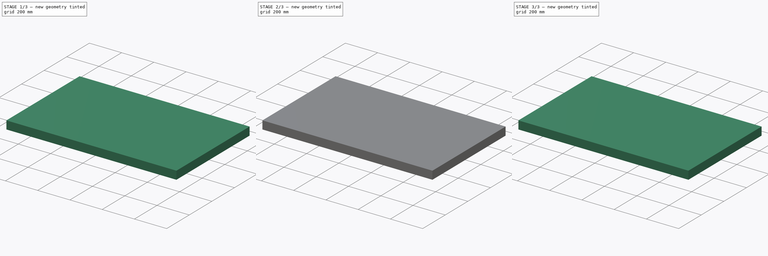
[diagram: build sequence overview — one tinted view per stage of 3, left to right]
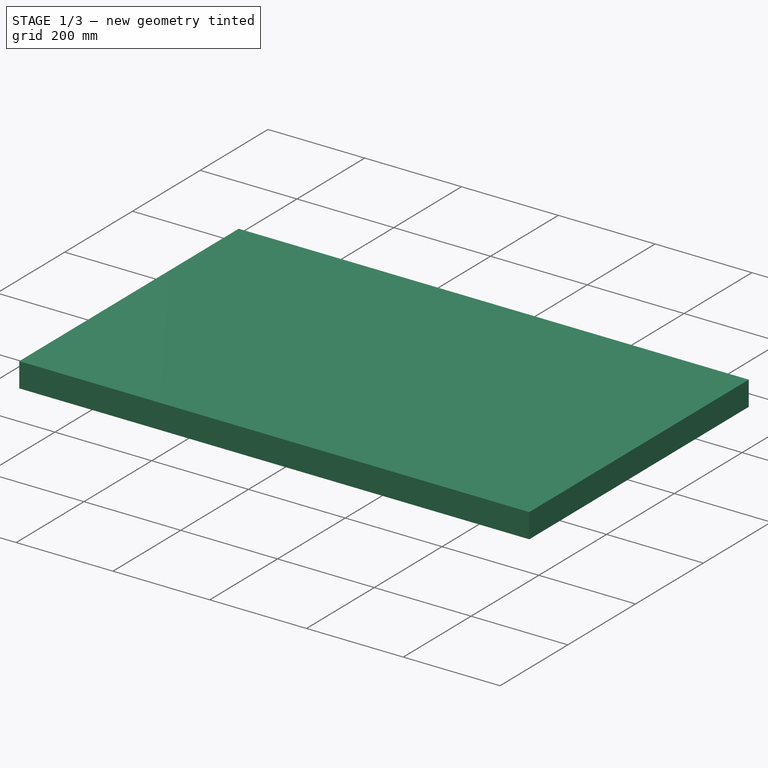
[diagram: stage 1 of 3 — iso view after this stage's code; geometry added in this stage tinted green]
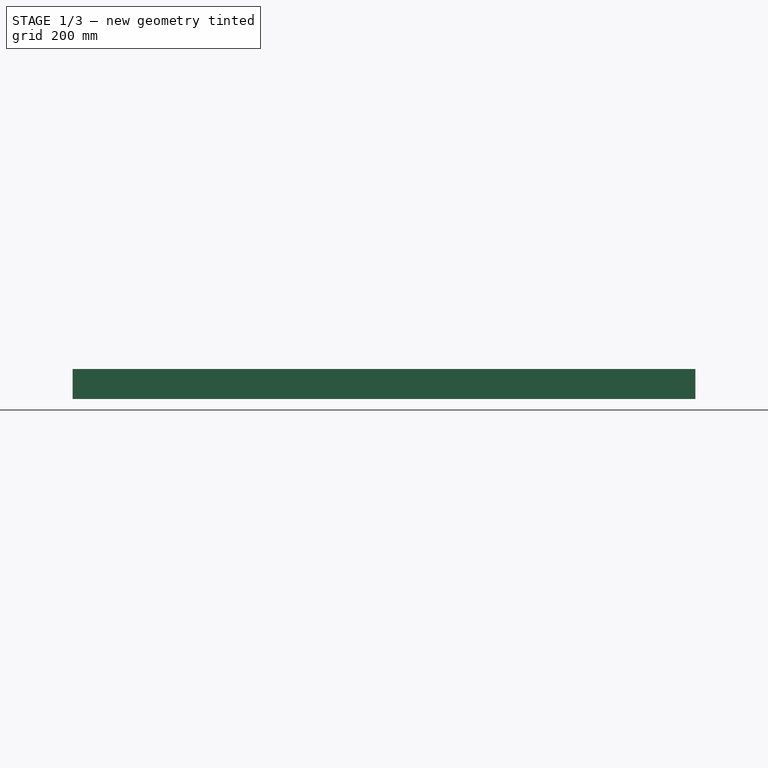
[diagram: stage 1 of 3 — front view after this stage's code; geometry added in this stage tinted green]
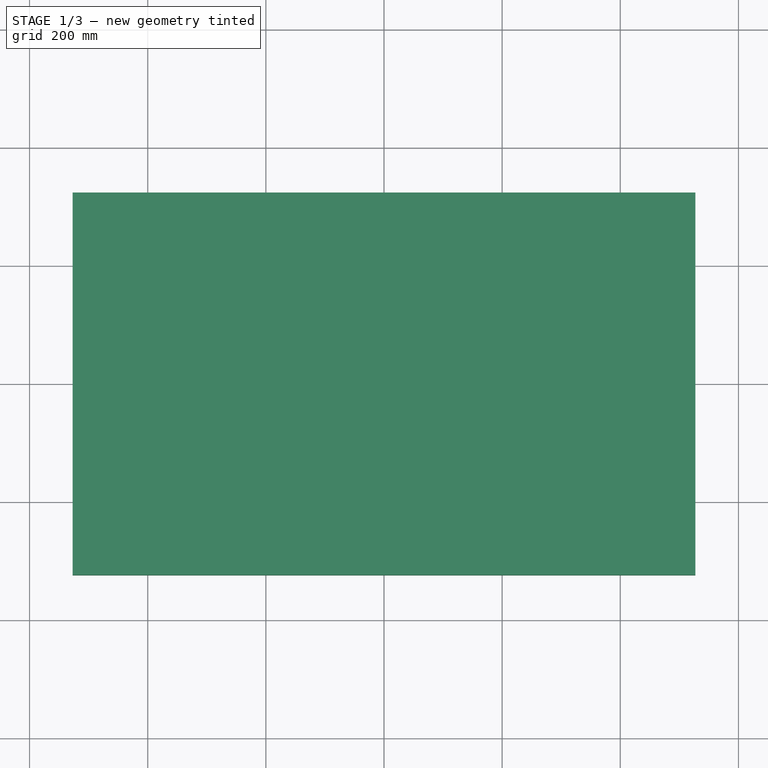
[diagram: stage 1 of 3 — top view after this stage's code; geometry added in this stage tinted green]
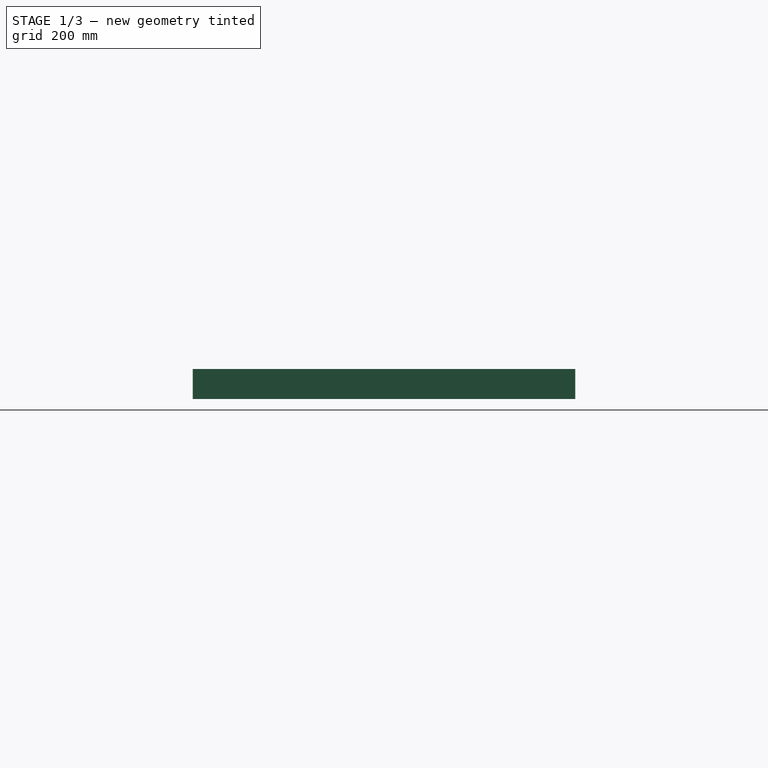
[diagram: stage 1 of 3 — right view after this stage's code; geometry added in this stage tinted green]
FCSTD DOCUMENT  (FreeCAD 1.1R40971 (Git))
Label: lid
License: All rights reserved
LicenseURL: http://en.wikipedia.org/wiki/All_rights_reserved
objects: Sketcher::SketchObject×4, App::Point×3, PartDesign::Pad×3, PartDesign::Body×2, PartDesign::Thickness×1, PartDesign::Pocket×1, App::Part×1
note: 25 computed .brp shape members not serialized (recipe doc carries the construction recipe); baked Part::Feature solids carry a one-line shape summary decoded from their .brp

FEATURE [App::Point] Origin001
  Role = Origin
FEATURE [Sketcher::SketchObject] Sketch
  ArcFitTolerance = 1e-06
  AttachmentSupport = -> [XY_Plane]
  ExternalTypes = [0]
  FullyConstrained = true
  MakeInternals = false
  MapMode = 5
  sketch-geometry (8):
    g0: LineSegment StartX=-527.05 StartY=323.85 StartZ=0 EndX=-527.05 EndY=-323.85 EndZ=0
    g1: LineSegment StartX=-527.05 StartY=-323.85 StartZ=0 EndX=527.05 EndY=-323.85 EndZ=0
    g2: LineSegment StartX=527.05 StartY=-323.85 StartZ=0 EndX=527.05 EndY=323.85 EndZ=0
    g3: LineSegment StartX=527.05 StartY=323.85 StartZ=0 EndX=-527.05 EndY=323.85 EndZ=0
    g4: LineSegment [constr] StartX=-412.75 StartY=304.8 StartZ=0 EndX=-412.75 EndY=-304.8 EndZ=0
    g5: LineSegment [constr] StartX=-412.75 StartY=-304.8 StartZ=0 EndX=501.65 EndY=-304.8 EndZ=0
    g6: LineSegment [constr] StartX=501.65 StartY=-304.8 StartZ=0 EndX=501.65 EndY=304.8 EndZ=0
    g7: LineSegment [constr] StartX=501.65 StartY=304.8 StartZ=0 EndX=-412.75 EndY=304.8 EndZ=0
  constraints (22):
    c: Coincident(g0,g1)
    c: Coincident(g1,g2)
    c: Coincident(g2,g3)
    c: Coincident(g3,g0)
    c: Vertical(g2)
    c: Horizontal(g1)
    c: Coincident(g4,g5)
    c: Coincident(g5,g6)
    c: Coincident(g6,g7)
    c: Coincident(g7,g4)
    c: Vertical(g6)
    c: Horizontal(g5)
    c: Horizontal(g7)
    c: DistanceY(g6,g6) = 609.6
    c: DistanceX(g7,g7) = 914.4
    c: DistanceX(g3,g3) = 1054.1
    c: DistanceY(g2,g2) = 647.7
    c: Symmetric(g0,g2,g-2)
    c: Symmetric(g0,g0,g-1)
    c: DistanceX(g6,g2) = 25.4
    c: DistanceX(g0,g4) = 114.3
    c: Symmetric(g4,g4,g-1)
FEATURE [PartDesign::Pad] Pad
  Direction = (0,0,1)
  Length = 50.8
  Length2 = 10
  Profile = -> Sketch
  ReferenceAxis = -> Sketch [N_Axis]
  Reversed = true
  Suppressed = false
  Type = 0
FEATURE [PartDesign::Body] Body001  label="window"
  AllowCompound = false
  Group = -> [Sketch001,Pad001]
  Origin = -> Origin002
  Tip = -> Pad001
FEATURE [PartDesign::Thickness] Thickness
  Base = -> Pad [Face6]
  BaseFeature = -> Pad
  Intersection = false
  Join = 0
  Mode = 0
  Reversed = true
  SupportTransform = false
  Suppressed = false
  Value = 3.302
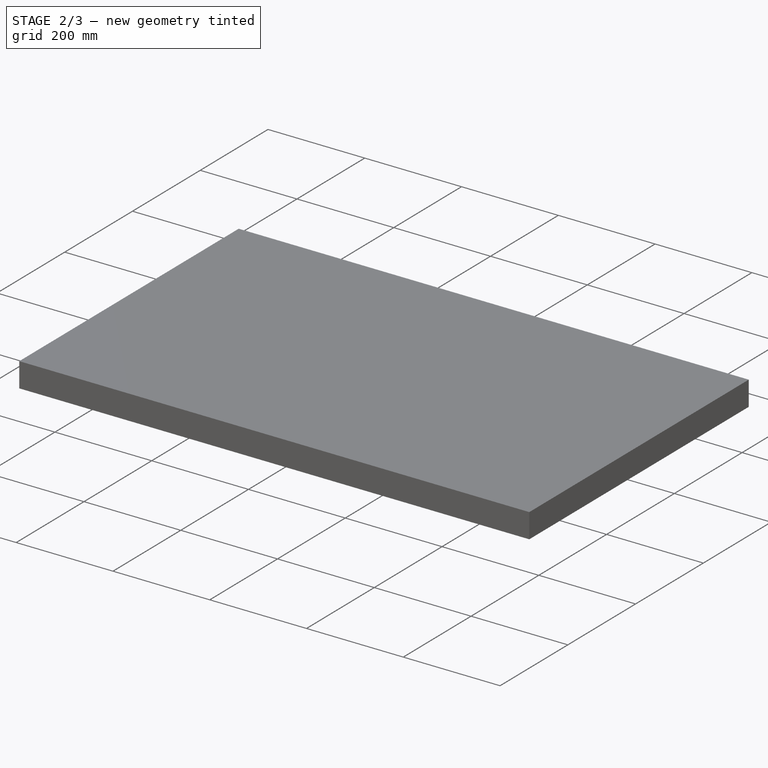
[diagram: stage 2 of 3 — iso view after this stage's code; geometry added in this stage tinted green]
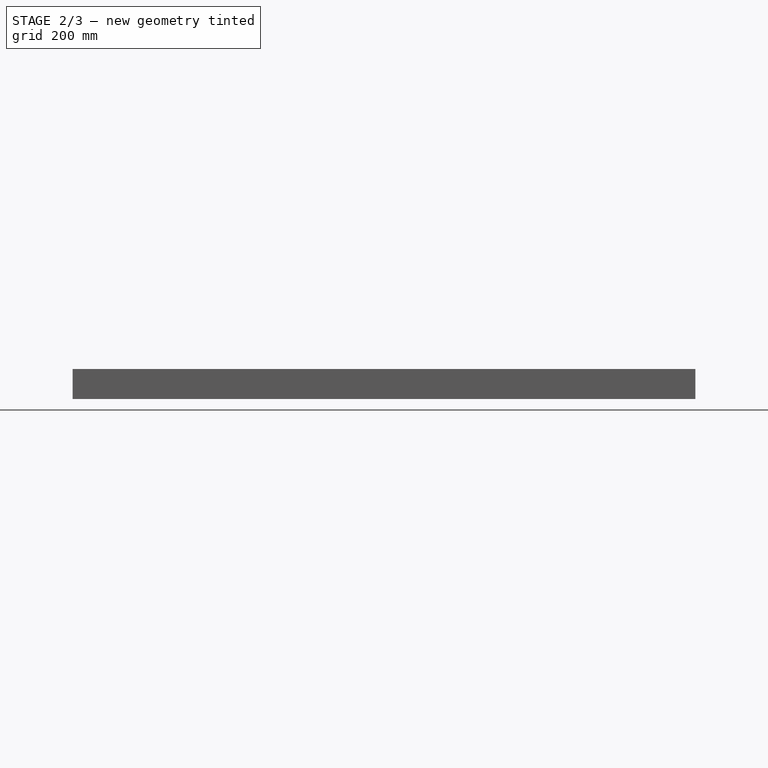
[diagram: stage 2 of 3 — front view after this stage's code; geometry added in this stage tinted green]
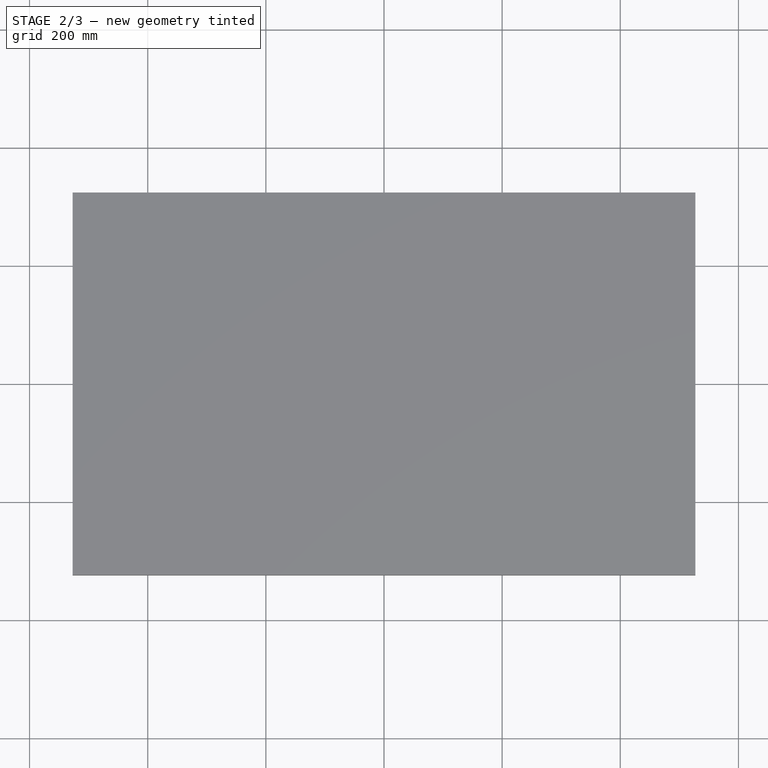
[diagram: stage 2 of 3 — top view after this stage's code; geometry added in this stage tinted green]
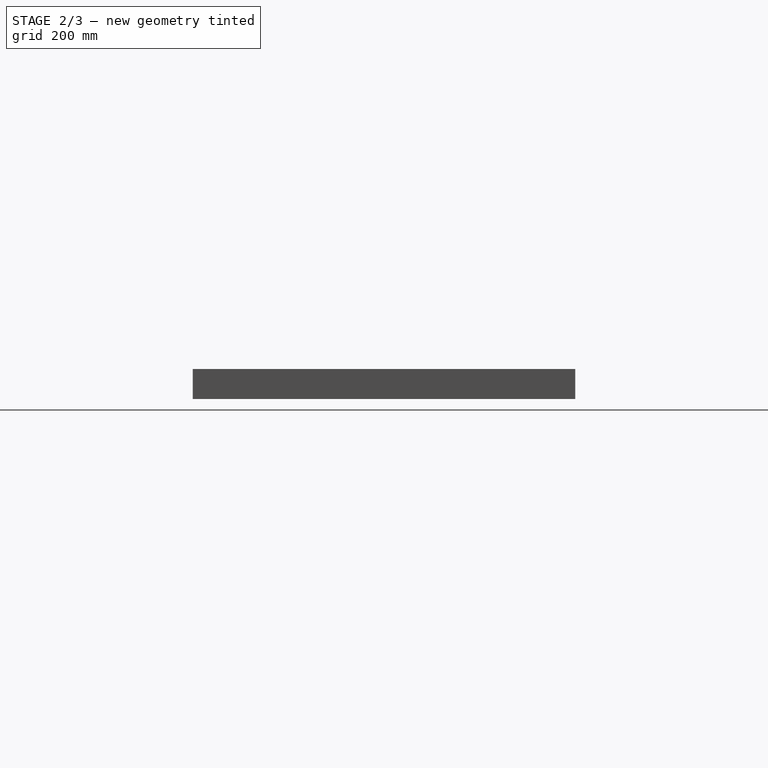
[diagram: stage 2 of 3 — right view after this stage's code; geometry added in this stage tinted green]
FEATURE [Sketcher::SketchObject] Sketch005  label="windowsk"
  ArcFitTolerance = 1e-06
  AttachmentSupport = -> [XY_Plane]
  ExternalGeometry = -> [Thickness]
  ExternalTypes = [0]
  FullyConstrained = true
  MakeInternals = false
  MapMode = 5
  sketch-geometry (4):
    g0: LineSegment StartX=-412.75 StartY=304.8 StartZ=0 EndX=-412.75 EndY=-304.8 EndZ=0
    g1: LineSegment StartX=-412.75 StartY=-304.8 StartZ=0 EndX=501.65 EndY=-304.8 EndZ=0
    g2: LineSegment StartX=501.65 StartY=-304.8 StartZ=0 EndX=501.65 EndY=304.8 EndZ=0
    g3: LineSegment StartX=501.65 StartY=304.8 StartZ=0 EndX=-412.75 EndY=304.8 EndZ=0
  constraints (12):
    c: Coincident(g0,g1)
    c: Coincident(g1,g2)
    c: Coincident(g2,g3)
    c: Coincident(g3,g0)
    c: Vertical(g2)
    c: Horizontal(g1)
    c: Horizontal(g3)
    c: DistanceX(g3,g3) = 914.4
    c: DistanceY(g0,g0) = 609.6
    c: DistanceX(g-1,g1) = 501.65
    c: DistanceX(g-3,g0) = 114.3
    c: Symmetric(g0,g0,g-1)
FEATURE [App::Point] Origin007
  Role = Origin
FEATURE [Sketcher::SketchObject] Sketch006  label="ribsk"
  ArcFitTolerance = 1e-06
  AttachmentSupport = -> [XY_Plane]
  ExternalTypes = [0]
  FullyConstrained = true
  MakeInternals = false
  MapMode = 5
  sketch-geometry (28):
    g0: LineSegment StartX=-527.05 StartY=1.651 StartZ=0 EndX=-527.05 EndY=-1.651 EndZ=0
    g1: LineSegment StartX=-527.05 StartY=-1.651 StartZ=0 EndX=-419.354 EndY=-1.651 EndZ=0
    g2: LineSegment StartX=527.05 StartY=-1.651 StartZ=0 EndX=527.05 EndY=1.651 EndZ=0
    g3: LineSegment StartX=527.05 StartY=1.651 StartZ=0 EndX=200.152 EndY=1.651 EndZ=0
    g4: LineSegment StartX=-111.252 StartY=323.85 StartZ=0 EndX=-111.252 EndY=1.651 EndZ=0
    g5: LineSegment StartX=-111.252 StartY=-323.85 StartZ=0 EndX=-107.95 EndY=-323.85 EndZ=0
    g6: LineSegment StartX=-107.95 StartY=-323.85 StartZ=0 EndX=-107.95 EndY=-1.651 EndZ=0
    g7: LineSegment StartX=-107.95 StartY=323.85 StartZ=0 EndX=-111.252 EndY=323.85 EndZ=0
    g8: LineSegment StartX=200.152 StartY=323.85 StartZ=0 EndX=200.152 EndY=1.651 EndZ=0
    g9: LineSegment StartX=200.152 StartY=-323.85 StartZ=0 EndX=196.85 EndY=-323.85 EndZ=0
    g10: LineSegment StartX=196.85 StartY=-323.85 StartZ=0 EndX=196.85 EndY=-1.651 EndZ=0
    g11: LineSegment StartX=196.85 StartY=323.85 StartZ=0 EndX=200.152 EndY=323.85 EndZ=0
    g12: LineSegment StartX=-111.252 StartY=1.651 StartZ=0 EndX=-416.052 EndY=1.651 EndZ=0
    g13: LineSegment StartX=-107.95 StartY=1.651 StartZ=0 EndX=-107.95 EndY=323.85 EndZ=0
    g14: LineSegment StartX=-111.252 StartY=-1.651 StartZ=0 EndX=-111.252 EndY=-323.85 EndZ=0
    g15: LineSegment StartX=-107.95 StartY=-1.651 StartZ=0 EndX=196.85 EndY=-1.651 EndZ=0
    g16: LineSegment StartX=200.152 StartY=-1.651 StartZ=0 EndX=527.05 EndY=-1.651 EndZ=0
    g17: LineSegment StartX=200.152 StartY=-1.651 StartZ=0 EndX=200.152 EndY=-323.85 EndZ=0
    g18: LineSegment StartX=196.85 StartY=1.651 StartZ=0 EndX=196.85 EndY=323.85 EndZ=0
    g19: LineSegment StartX=-419.354 StartY=323.85 StartZ=0 EndX=-419.354 EndY=1.651 EndZ=0
    g20: LineSegment StartX=-419.354 StartY=-323.85 StartZ=0 EndX=-416.052 EndY=-323.85 EndZ=0
    g21: LineSegment StartX=-416.052 StartY=-323.85 StartZ=0 EndX=-416.052 EndY=-1.651 EndZ=0
    g22: LineSegment StartX=-416.052 StartY=323.85 StartZ=0 EndX=-419.354 EndY=323.85 EndZ=0
    g23: LineSegment StartX=-419.354 StartY=1.651 StartZ=0 EndX=-527.05 EndY=1.651 EndZ=0
    g24: LineSegment StartX=-416.052 StartY=1.651 StartZ=0 EndX=-416.052 EndY=323.85 EndZ=0
    g25: LineSegment StartX=-416.052 StartY=-1.651 StartZ=0 EndX=-111.252 EndY=-1.651 EndZ=0
    g26: LineSegment StartX=-419.354 StartY=-1.651 StartZ=0 EndX=-419.354 EndY=-323.85 EndZ=0
    g27: LineSegment StartX=-107.95 StartY=1.651 StartZ=0 EndX=196.85 EndY=1.651 EndZ=0
  constraints (80):
    c: Coincident(g0,g1)
    c: Coincident(g16,g2)
    c: Coincident(g2,g3)
    c: Coincident(g23,g0)
    c: Vertical(g2)
    c: Coincident(g14,g5)
    c: Coincident(g5,g6)
    c: Coincident(g13,g7)
    c: Coincident(g7,g4)
    c: Horizontal(g5)
    c: Horizontal(g7)
    c: Coincident(g17,g9)
    c: Coincident(g9,g10)
    c: Coincident(g18,g11)
    c: Coincident(g11,g8)
    c: Horizontal(g9)
    c: Horizontal(g11)
    c: Vertical(g6)
    c: Vertical(g13)
    c: Vertical(g4)
    c: Vertical(g14)
    c: Coincident(g12,g4)
    c: Coincident(g6,g15)
    c: Coincident(g14,g25)
    c: Vertical(g8)
    c: Vertical(g17)
    c: Vertical(g10)
    c: Vertical(g18)
    c: Equal(g5,g9)
    c: Equal(g9,g2)
    c: PointOnObject(g13,g6)
    c: Symmetric(g0,g0,g-1)
    c: Symmetric(g5,g4,g-1)
    c: Symmetric(g9,g8,g-1)
    c: Horizontal(g5,g9)
    c: DistanceY(g9,g8) = 647.7
    c: DistanceX(g0,g2) = 1054.1
    c: Symmetric(g0,g2,g-2)
    c: Distance(g11,g-2) = 196.85
    c: Coincident(g26,g20)
    c: Coincident(g20,g21)
    c: Coincident(g24,g22)
    c: Coincident(g22,g19)
    c: Horizontal(g20)
    c: Horizontal(g22)
    c: Equal(g2,g20)
    c: Horizontal(g12)
    c: Horizontal(g23)
    c: Horizontal(g7,g24)
    c: Horizontal(g5,g20)
    c: PointOnObject(g23,g12)
    c: DistanceX(g12,g12) = 304.8
    c: Vertical(g21)
    c: Vertical(g24)
    c: Coincident(g12,g24)
    c: Horizontal(g1)
    c: Horizontal(g25)
    c: PointOnObject(g6,g1)
    c: Coincident(g21,g25)
    c: Vertical(g19)
    c: Vertical(g26)
    c: Coincident(g23,g19)
    c: Coincident(g1,g26)
    c: PointOnObject(g1,g19)
    c: PointOnObject(g21,g24)
    c: PointOnObject(g21,g1)
    c: DistanceX(g22,g22) = 3.302
    c: Horizontal(g3)
    c: Coincident(g8,g3)
    c: PointOnObject(g4,g3)
    c: Coincident(g27,g13)
    c: Coincident(g27,g18)
    c: Horizontal(g27)
    c: PointOnObject(g13,g12)
    c: Equal(g12,g27)
    c: Horizontal(g15)
    c: Coincident(g15,g10)
    c: Horizontal(g16)
    c: Coincident(g16,g17)
    c: PointOnObject(g10,g18)
FEATURE [PartDesign::Pad] Pad002
  BaseFeature = -> Thickness
  Direction = (0,0,1)
  Length = 31.75
  Length2 = 10
  Profile = -> Sketch006
  ReferenceAxis = -> Sketch006 [N_Axis]
  Reversed = true
  Suppressed = false
  Type = 0
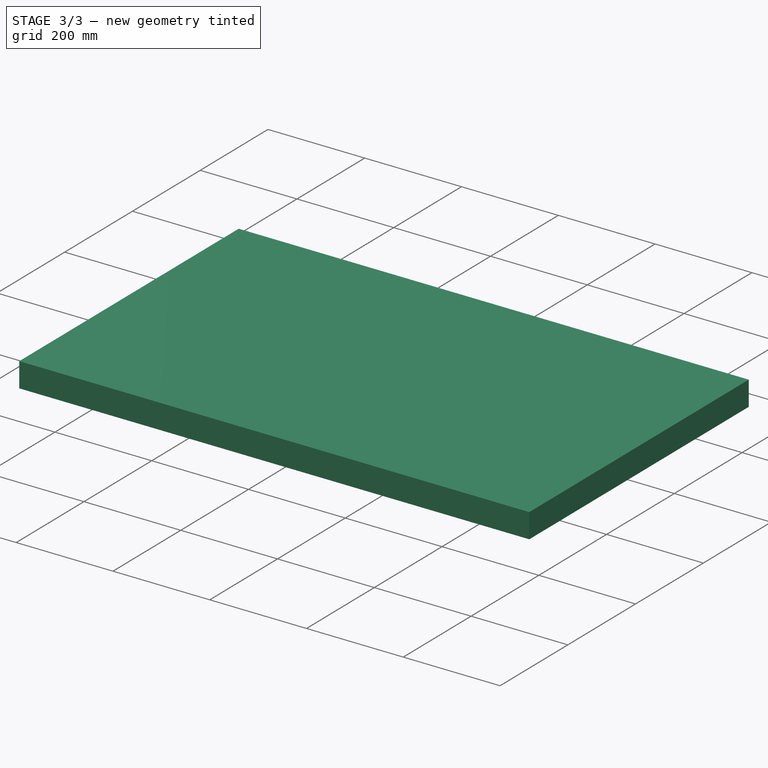
[diagram: stage 3 of 3 — iso view after this stage's code; geometry added in this stage tinted green]
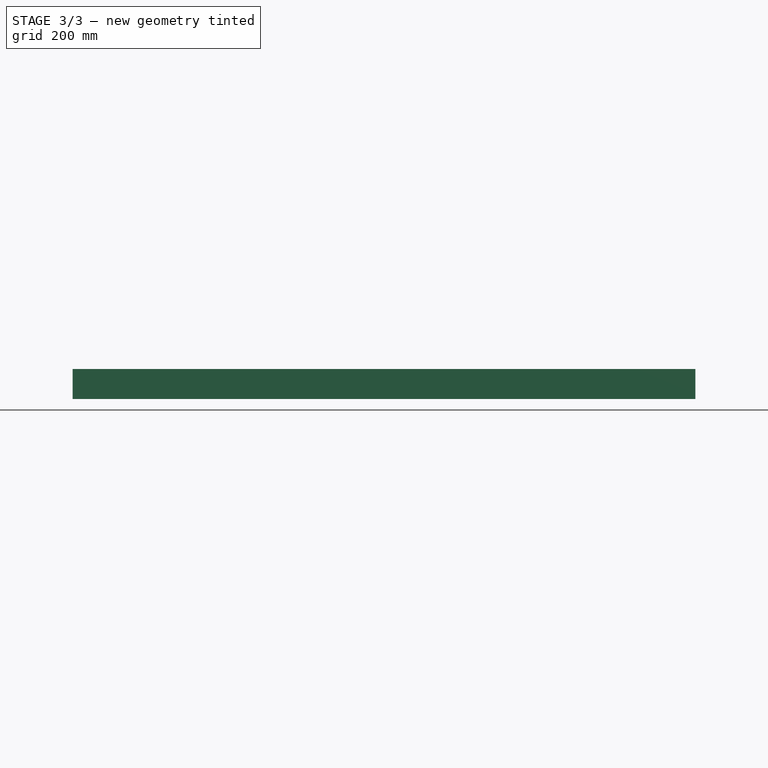
[diagram: stage 3 of 3 — front view after this stage's code; geometry added in this stage tinted green]
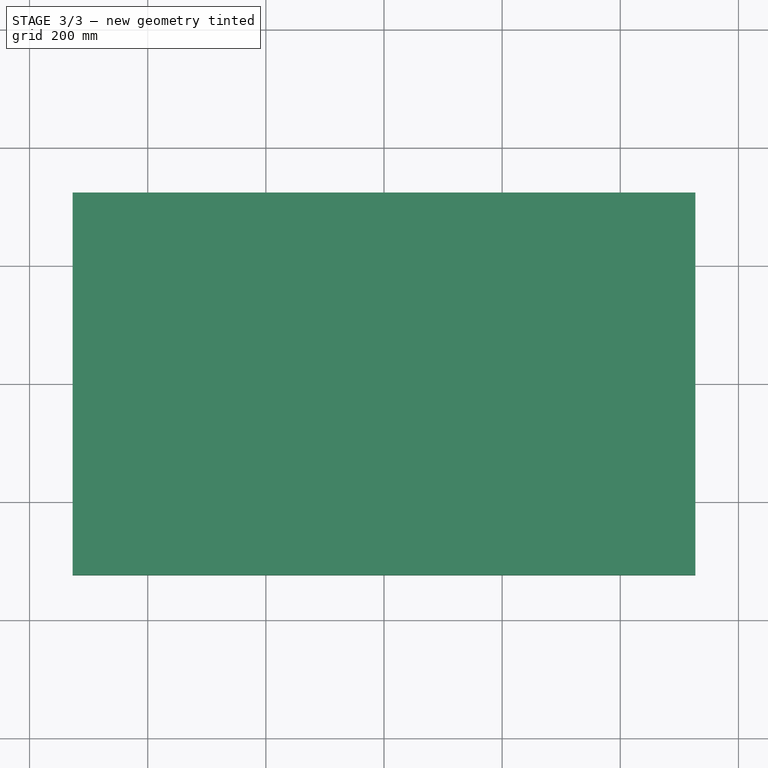
[diagram: stage 3 of 3 — top view after this stage's code; geometry added in this stage tinted green]
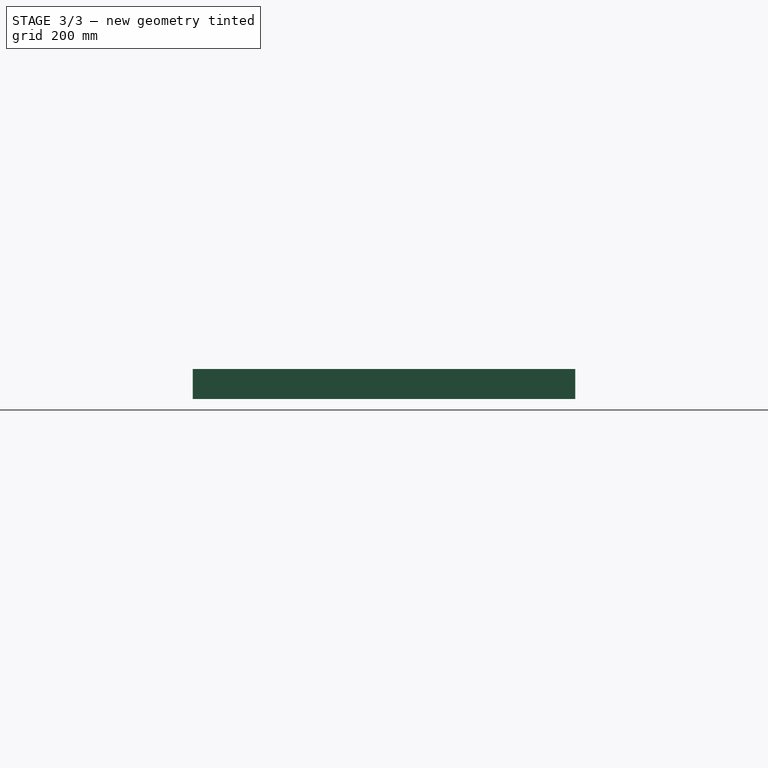
[diagram: stage 3 of 3 — right view after this stage's code; geometry added in this stage tinted green]
FEATURE [App::Point] Origin003
  Role = Origin
FEATURE [Sketcher::SketchObject] Sketch001
  ArcFitTolerance = 1e-06
  AttachmentSupport = -> [XY_Plane001]
  ExternalTypes = [0]
  FullyConstrained = true
  MakeInternals = false
  MapMode = 5
  sketch-geometry (4):
    g0: LineSegment StartX=-412.75 StartY=304.8 StartZ=0 EndX=-412.75 EndY=-304.8 EndZ=0
    g1: LineSegment StartX=-412.75 StartY=-304.8 StartZ=0 EndX=501.65 EndY=-304.8 EndZ=0
    g2: LineSegment StartX=501.65 StartY=-304.8 StartZ=0 EndX=501.65 EndY=304.8 EndZ=0
    g3: LineSegment StartX=501.65 StartY=304.8 StartZ=0 EndX=-412.75 EndY=304.8 EndZ=0
  constraints (11):
    c: Coincident(g0,g1)
    c: Coincident(g1,g2)
    c: Coincident(g2,g3)
    c: Coincident(g3,g0)
    c: Vertical(g0)
    c: Horizontal(g1)
    c: Horizontal(g3)
    c: DistanceY(g2,g2) = 609.6
    c: DistanceX(g3,g3) = 914.4
    c: Symmetric(g2,g1,g-1)
    c: DistanceX(g-1,g2) = 501.65
FEATURE [PartDesign::Pad] Pad001
  Direction = (0,0,1)
  Length = 6.35
  Length2 = 10
  Profile = -> Sketch001
  ReferenceAxis = -> Sketch001 [N_Axis]
  Reversed = true
  Suppressed = false
  Type = 0
FEATURE [PartDesign::Pocket] Pocket
  BaseFeature = -> Pad002
  Direction = (0,0,-1)
  Length = 6.35
  Length2 = 5
  Profile = -> Sketch005
  ReferenceAxis = -> Sketch005 [N_Axis]
  Suppressed = false
  Type = 0
FEATURE [PartDesign::Body] Body  label="top"
  AllowCompound = false
  Group = -> [Sketch,Pad,Thickness,Sketch005,Sketch006,Pad002,Pocket]
  Origin = -> Origin
  Tip = -> Pocket
FEATURE [App::Part] Part  label="lid"
  Group = -> [Body,Body001]
  Origin = -> Origin006
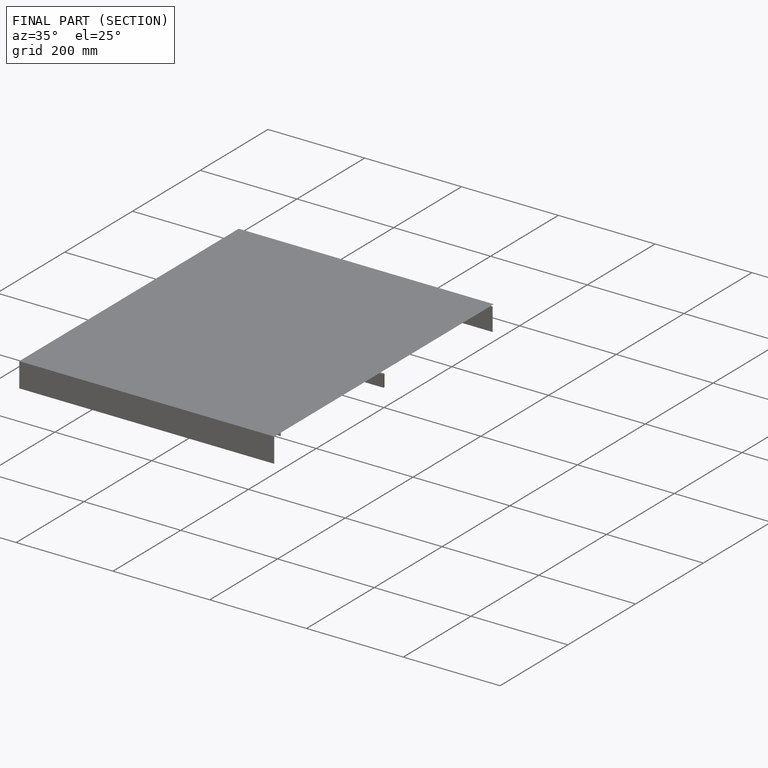
[diagram: finished part — half-section view (interior)]
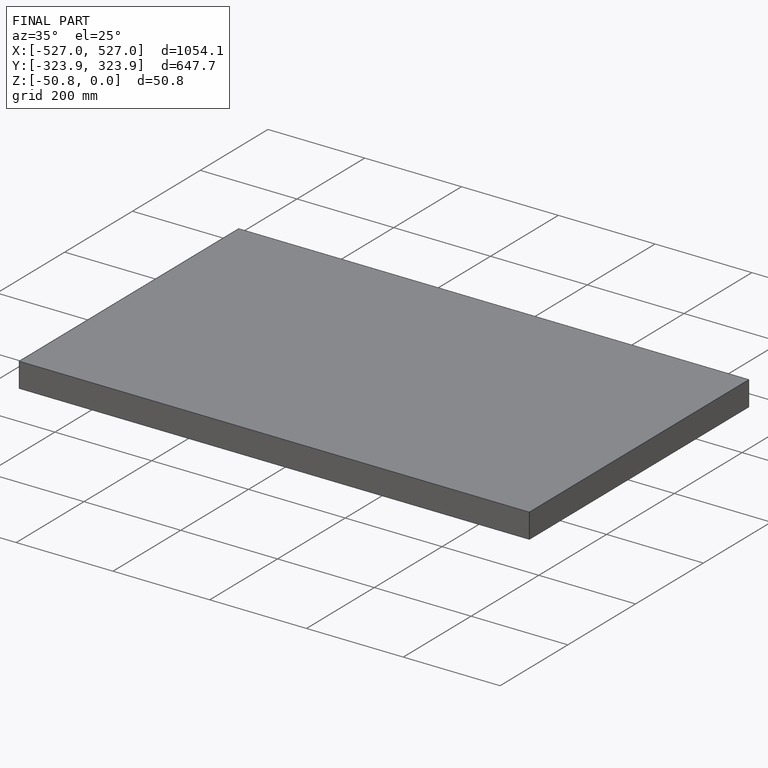
[diagram: finished part — iso view with bounding-box wireframe]
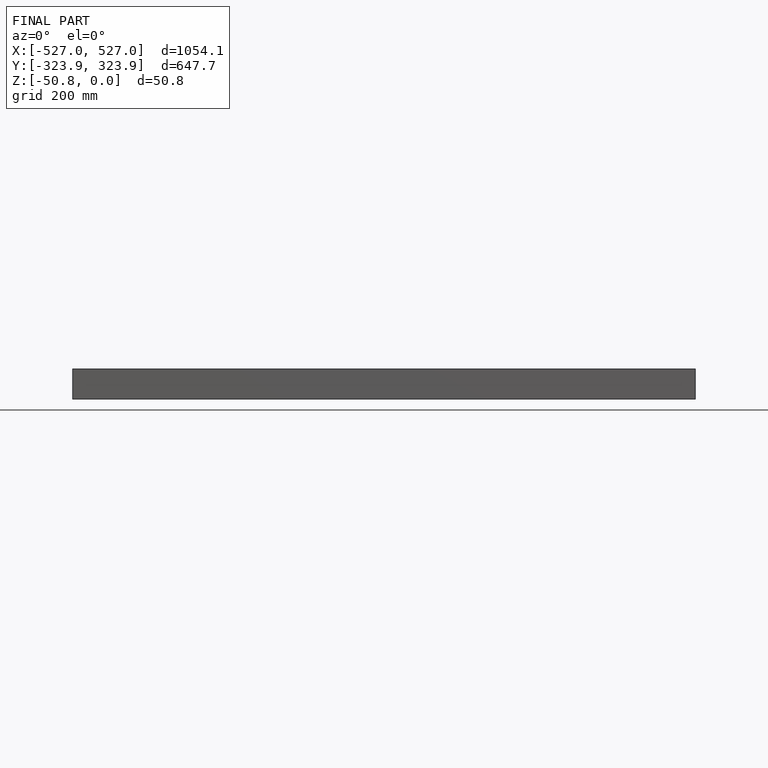
[diagram: finished part — front view with bounding-box wireframe]
